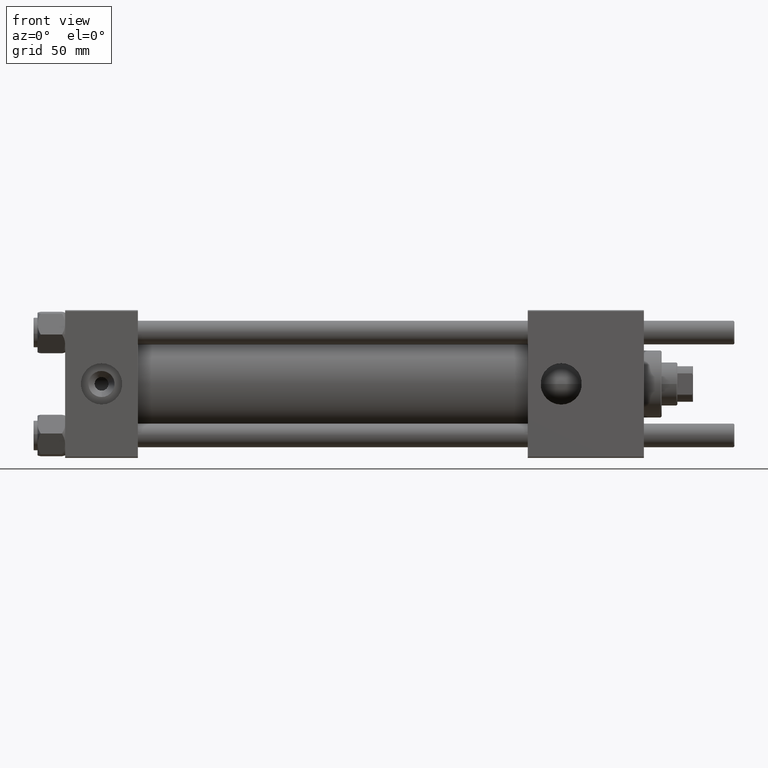
[diagram: clean part render]
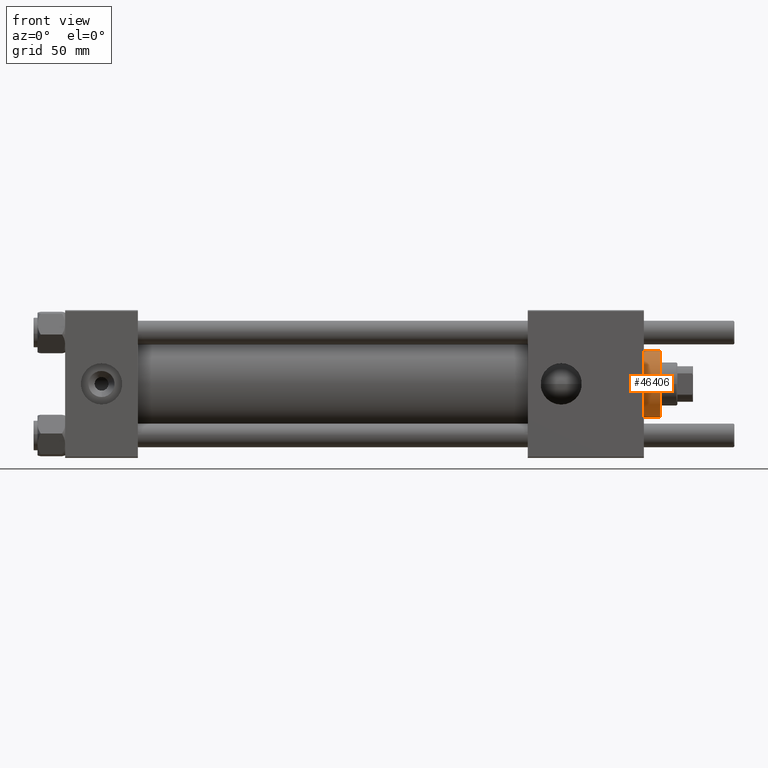
[diagram: same view with one face highlighted and labeled with its STEP entity id]
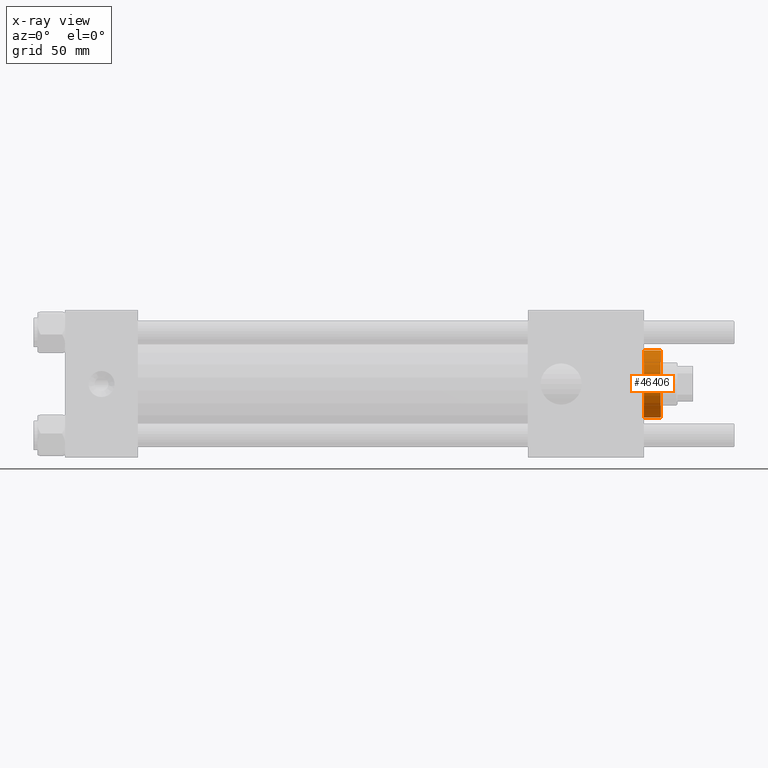
[diagram: x-ray of the same camera — body ghosted, the highlighted face saturated]
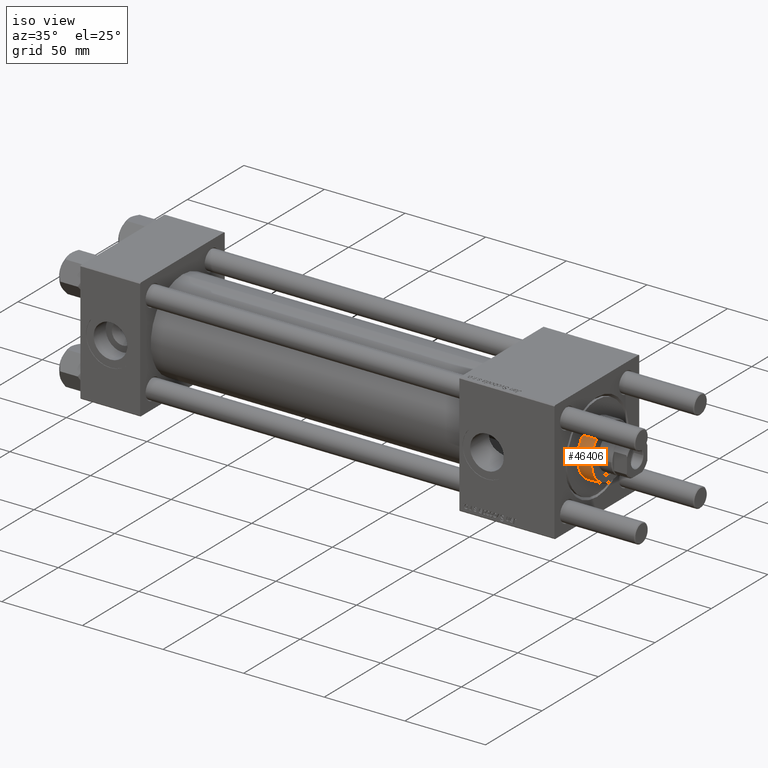
[diagram: same view with one face highlighted and labeled with its STEP entity id]
A machine part, front view. The second image highlights one B-rep face of the part: STEP entity #46406.
The next image is the same camera in x-ray: the body ghosted, the highlighted face saturated — about 0% of this face is hidden behind the body in this view.
A second angle (iso view) of the same face is appended — the face is thin or edge-on in the first view.
In plain terms, the highlighted cylindrical surface (edge-blend (fillet) strip) has radius 17 mm, axis along (-1, -0, 0).
Its self-contained STEP definition (entity closure, byte-faithful):
#1010 = DIRECTION ( 'NONE',  ( -1.000000000000000000, 0.000000000000000000, 0.000000000000000000 ) ) ;
#1230 = DIRECTION ( 'NONE',  ( 0.000000000000000000, 0.000000000000000000, 1.000000000000000000 ) ) ;
#6789 = ORIENTED_EDGE ( 'NONE', *, *, #32715, .T. ) ;
#7303 = CARTESIAN_POINT ( 'NONE',  ( -17.00000000000000000, 0.000000000000000000, 37.19999999999999574 ) ) ;
#7458 = LINE ( 'NONE', #20375, #20667 ) ;
#7663 = CIRCLE ( 'NONE', #18684, 17.00000000000000000 ) ;
#8125 = EDGE_CURVE ( 'NONE', #36251, #35912, #18252, .T. ) ;
#9091 = CARTESIAN_POINT ( 'NONE',  ( 17.00000000000000000, 2.081899558550500280E-15, 37.69999999999999574 ) ) ;
#10313 = EDGE_CURVE ( 'NONE', #36251, #30988, #7663, .T. ) ;
#11857 = CARTESIAN_POINT ( 'NONE',  ( 0.000000000000000000, 0.000000000000000000, 37.19999999999999574 ) ) ;
#11895 = AXIS2_PLACEMENT_3D ( 'NONE', #48672, #23364, #1010 ) ;
#13381 = EDGE_LOOP ( 'NONE', ( #46101, #32536, #39539, #6789 ) ) ;
#14943 = DIRECTION ( 'NONE',  ( -0.000000000000000000, -0.000000000000000000, -1.000000000000000000 ) ) ;
#14988 = CARTESIAN_POINT ( 'NONE',  ( 0.000000000000000000, 0.000000000000000000, 28.69999999999999929 ) ) ;
#16439 = DIRECTION ( 'NONE',  ( 0.000000000000000000, 0.000000000000000000, -1.000000000000000000 ) ) ;
#17016 = DIRECTION ( 'NONE',  ( 1.000000000000000000, 0.000000000000000000, 0.000000000000000000 ) ) ;
#17157 = AXIS2_PLACEMENT_3D ( 'NONE', #14988, #1230, #49181 ) ;
#17945 = FACE_OUTER_BOUND ( 'NONE', #13381, .T. ) ;
#18252 = LINE ( 'NONE', #9091, #25932 ) ;
#18684 = AXIS2_PLACEMENT_3D ( 'NONE', #11857, #16439, #17016 ) ;
#20375 = CARTESIAN_POINT ( 'NONE',  ( -17.00000000000000000, 0.000000000000000000, 37.69999999999999574 ) ) ;
#20667 = VECTOR ( 'NONE', #14943, 1000.000000000000000 ) ;
#22799 = CYLINDRICAL_SURFACE ( 'NONE', #11895, 17.00000000000000000 ) ;
#23364 = DIRECTION ( 'NONE',  ( -0.000000000000000000, -0.000000000000000000, -1.000000000000000000 ) ) ;
#25932 = VECTOR ( 'NONE', #26569, 1000.000000000000000 ) ;
#26569 = DIRECTION ( 'NONE',  ( -0.000000000000000000, -0.000000000000000000, -1.000000000000000000 ) ) ;
#27811 = VERTEX_POINT ( 'NONE', #32233 ) ;
#28172 = EDGE_CURVE ( 'NONE', #30988, #27811, #7458, .T. ) ;
#30988 = VERTEX_POINT ( 'NONE', #7303 ) ;
#32233 = CARTESIAN_POINT ( 'NONE',  ( -17.00000000000000000, 0.000000000000000000, 28.69999999999999929 ) ) ;
#32478 = CARTESIAN_POINT ( 'NONE',  ( 17.00000000000000000, 2.081899558550500280E-15, 37.19999999999999574 ) ) ;
#32536 = ORIENTED_EDGE ( 'NONE', *, *, #10313, .T. ) ;
#32715 = EDGE_CURVE ( 'NONE', #27811, #35912, #41923, .T. ) ;
#34892 = CARTESIAN_POINT ( 'NONE',  ( 17.00000000000000000, 2.081899558550500280E-15, 28.69999999999999929 ) ) ;
#35912 = VERTEX_POINT ( 'NONE', #34892 ) ;
#36251 = VERTEX_POINT ( 'NONE', #32478 ) ;
#39539 = ORIENTED_EDGE ( 'NONE', *, *, #28172, .T. ) ;
#41923 = CIRCLE ( 'NONE', #17157, 17.00000000000000000 ) ;
#46101 = ORIENTED_EDGE ( 'NONE', *, *, #8125, .F. ) ;
#46406 = ADVANCED_FACE ( 'NONE', ( #17945 ), #22799, .T. ) ;
#48672 = CARTESIAN_POINT ( 'NONE',  ( 0.000000000000000000, 0.000000000000000000, 37.69999999999999574 ) ) ;
#49181 = DIRECTION ( 'NONE',  ( 1.000000000000000000, 0.000000000000000000, 0.000000000000000000 ) ) ;